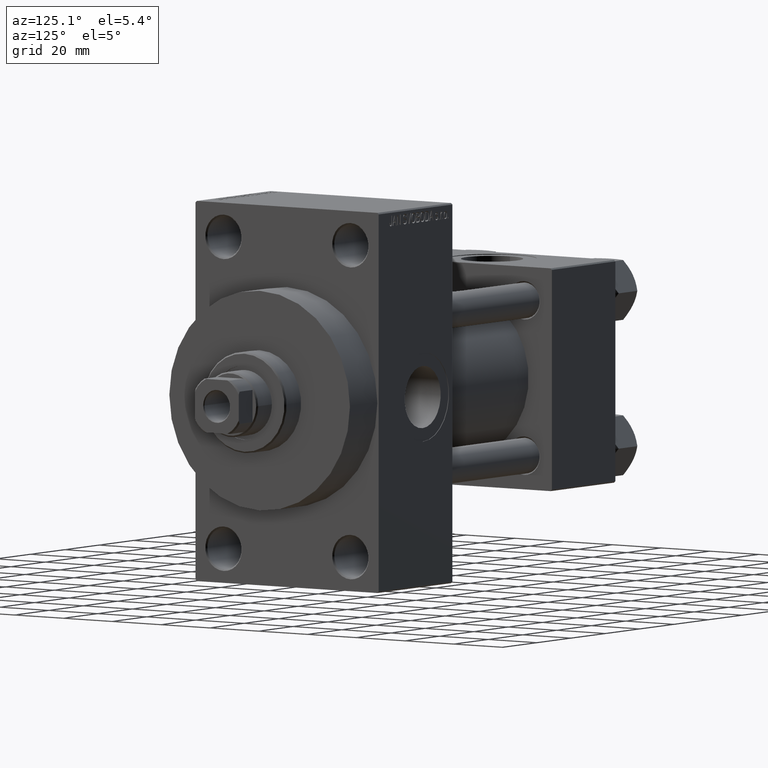
[diagram: clean part render]
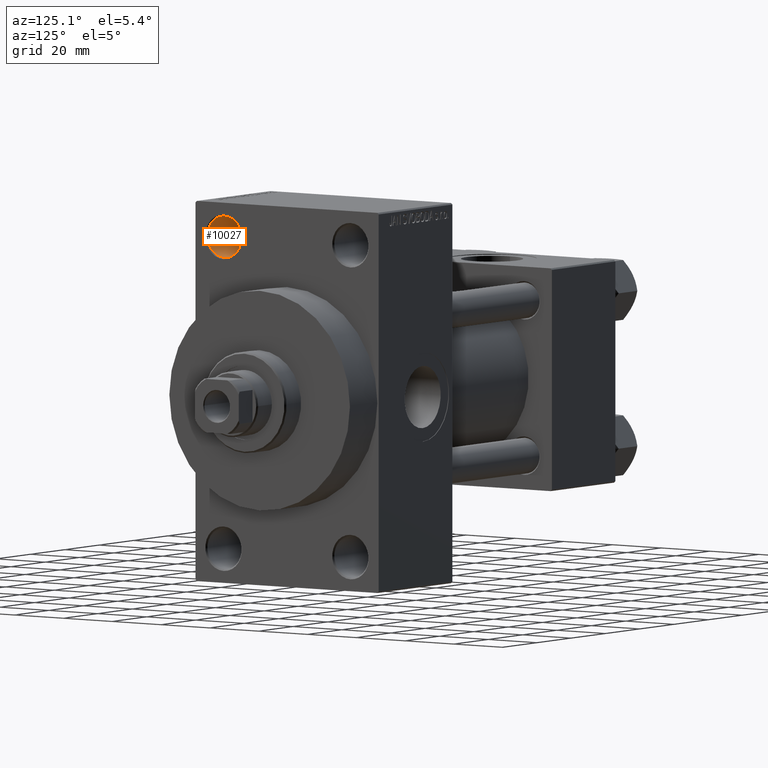
[diagram: same view with one face highlighted and labeled with its STEP entity id]
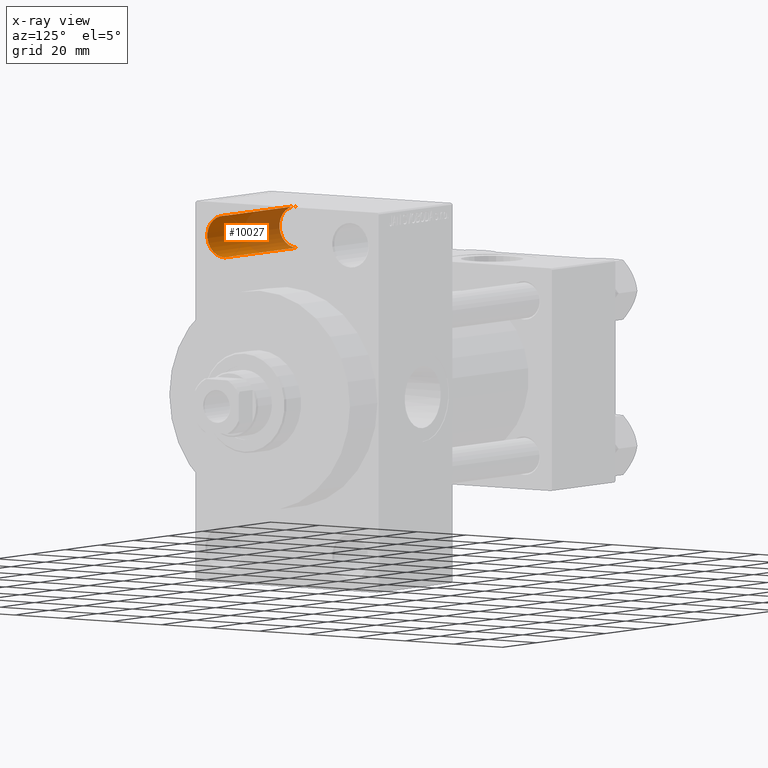
[diagram: x-ray of the same camera — body ghosted, the highlighted face saturated]
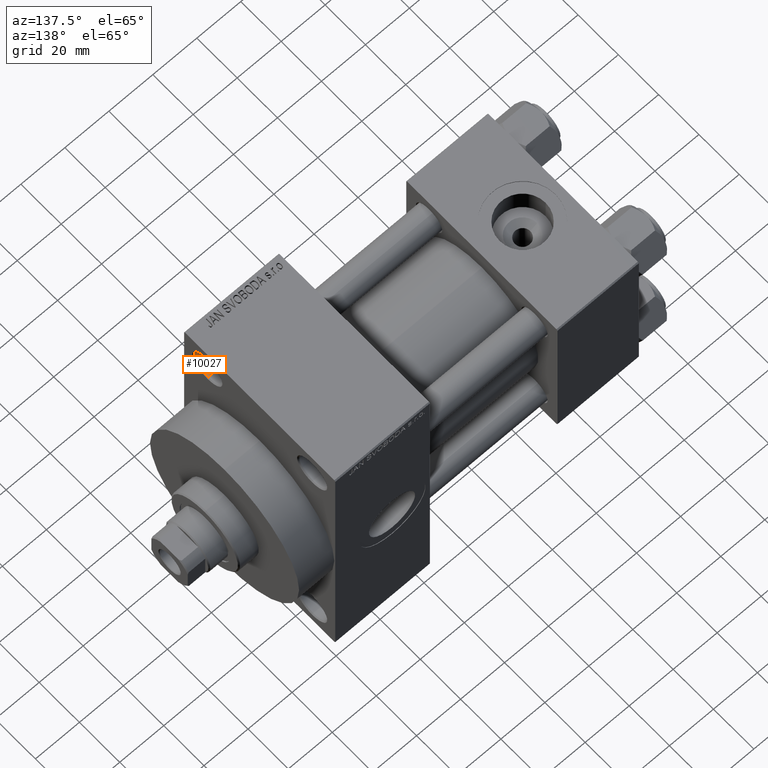
[diagram: same view with one face highlighted and labeled with its STEP entity id]
A machine part, auxiliary view. The second image highlights one B-rep face of the part: STEP entity #10027.
The next image is the same camera in x-ray: the body ghosted, the highlighted face saturated — about 49% of this face is hidden behind the body in this view.
A second angle (auxiliary view) of the same face is appended — the face is thin or edge-on in the first view.
In plain terms, the highlighted cylindrical surface (edge-blend (fillet) strip) has radius 7 mm, axis along (1, 0, 0).
Its self-contained STEP definition (entity closure, byte-faithful):
#600 = DIRECTION ( 'NONE',  ( 0.000000000000000000, 0.000000000000000000, 1.000000000000000000 ) ) ;
#2136 = VECTOR ( 'NONE', #37653, 1000.000000000000000 ) ;
#3119 = AXIS2_PLACEMENT_3D ( 'NONE', #25894, #30417, #600 ) ;
#4776 = ORIENTED_EDGE ( 'NONE', *, *, #10512, .T. ) ;
#7850 = CARTESIAN_POINT ( 'NONE',  ( 95.49999999999997158, -25.99999999999999645, 52.50000000000000000 ) ) ;
#9618 = VECTOR ( 'NONE', #31053, 1000.000000000000000 ) ;
#10027 = ADVANCED_FACE ( 'NONE', ( #45573 ), #16907, .F. ) ;
#10512 = EDGE_CURVE ( 'NONE', #35010, #38885, #40489, .T. ) ;
#12877 = DIRECTION ( 'NONE',  ( 1.000000000000000000, -0.000000000000000000, -0.000000000000000000 ) ) ;
#15228 = DIRECTION ( 'NONE',  ( -1.000000000000000000, -0.000000000000000000, -0.000000000000000000 ) ) ;
#15927 = LINE ( 'NONE', #25773, #2136 ) ;
#16670 = DIRECTION ( 'NONE',  ( 0.000000000000000000, 0.000000000000000000, -1.000000000000000000 ) ) ;
#16837 = CARTESIAN_POINT ( 'NONE',  ( 95.49999999999997158, -25.99999999999999645, 45.50000000000000000 ) ) ;
#16907 = CYLINDRICAL_SURFACE ( 'NONE', #41988, 6.999999999999999112 ) ;
#17708 = CARTESIAN_POINT ( 'NONE',  ( 137.5000000000000000, -25.99999999999999645, 59.50000000000000000 ) ) ;
#19836 = LINE ( 'NONE', #37756, #9618 ) ;
#22636 = AXIS2_PLACEMENT_3D ( 'NONE', #7850, #15228, #30029 ) ;
#23378 = ORIENTED_EDGE ( 'NONE', *, *, #44552, .T. ) ;
#23538 = ORIENTED_EDGE ( 'NONE', *, *, #27249, .T. ) ;
#25748 = EDGE_CURVE ( 'NONE', #40995, #38885, #15927, .T. ) ;
#25773 = CARTESIAN_POINT ( 'NONE',  ( 75.20101012677666574, -25.99999999999999645, 45.50000000000000000 ) ) ;
#25894 = CARTESIAN_POINT ( 'NONE',  ( 137.5000000000000000, -25.99999999999999645, 52.50000000000000000 ) ) ;
#26205 = VERTEX_POINT ( 'NONE', #29502 ) ;
#27249 = EDGE_CURVE ( 'NONE', #40995, #26205, #43245, .T. ) ;
#29502 = CARTESIAN_POINT ( 'NONE',  ( 95.49999999999997158, -25.99999999999999645, 59.50000000000000000 ) ) ;
#30029 = DIRECTION ( 'NONE',  ( 0.000000000000000000, 0.000000000000000000, 1.000000000000000000 ) ) ;
#30417 = DIRECTION ( 'NONE',  ( 1.000000000000000000, 0.000000000000000000, 0.000000000000000000 ) ) ;
#31053 = DIRECTION ( 'NONE',  ( 1.000000000000000000, -0.000000000000000000, -0.000000000000000000 ) ) ;
#33195 = ORIENTED_EDGE ( 'NONE', *, *, #25748, .F. ) ;
#34827 = CARTESIAN_POINT ( 'NONE',  ( 75.20101012677666574, -25.99999999999999645, 52.50000000000000000 ) ) ;
#35010 = VERTEX_POINT ( 'NONE', #17708 ) ;
#35151 = CARTESIAN_POINT ( 'NONE',  ( 137.5000000000000000, -25.99999999999999645, 45.50000000000000000 ) ) ;
#37653 = DIRECTION ( 'NONE',  ( 1.000000000000000000, -0.000000000000000000, -0.000000000000000000 ) ) ;
#37756 = CARTESIAN_POINT ( 'NONE',  ( 75.20101012677666574, -25.99999999999999645, 59.50000000000000000 ) ) ;
#38885 = VERTEX_POINT ( 'NONE', #35151 ) ;
#40489 = CIRCLE ( 'NONE', #3119, 6.999999999999999112 ) ;
#40995 = VERTEX_POINT ( 'NONE', #16837 ) ;
#41981 = EDGE_LOOP ( 'NONE', ( #23538, #23378, #4776, #33195 ) ) ;
#41988 = AXIS2_PLACEMENT_3D ( 'NONE', #34827, #12877, #16670 ) ;
#43245 = CIRCLE ( 'NONE', #22636, 6.999999999999999112 ) ;
#44552 = EDGE_CURVE ( 'NONE', #26205, #35010, #19836, .T. ) ;
#45573 = FACE_OUTER_BOUND ( 'NONE', #41981, .T. ) ;